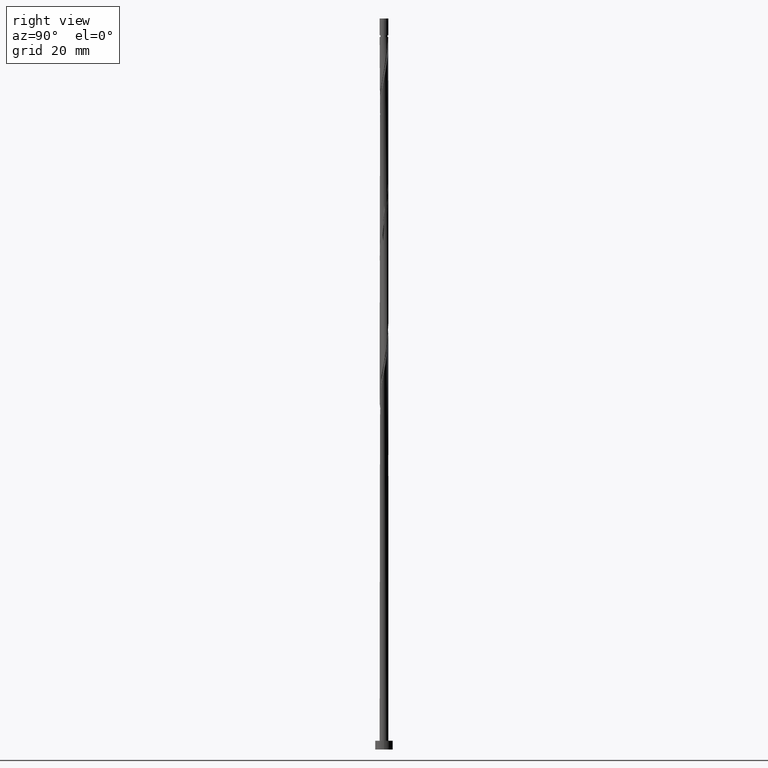
[diagram: clean part render]
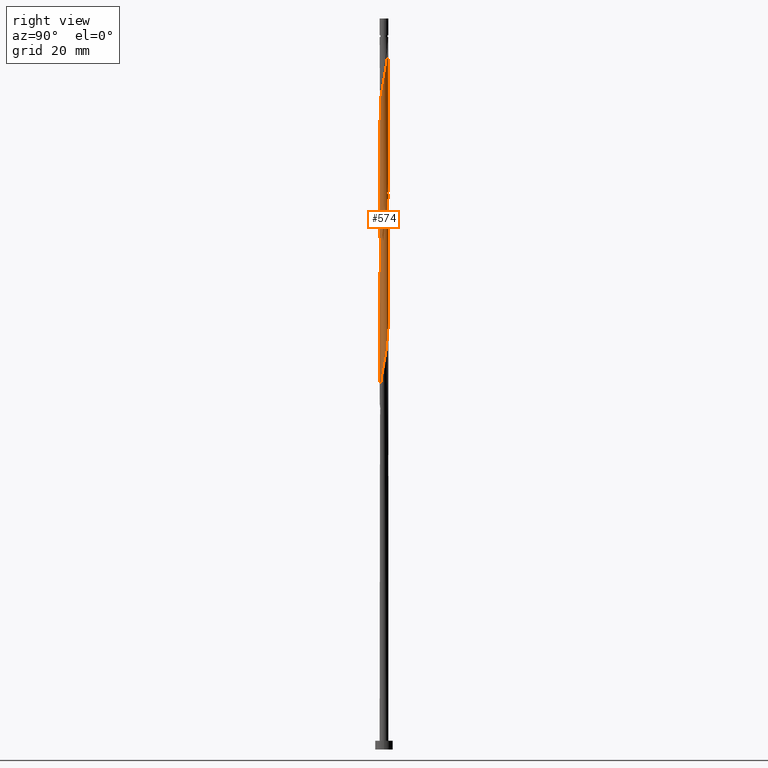
[diagram: same view with one face highlighted and labeled with its STEP entity id]
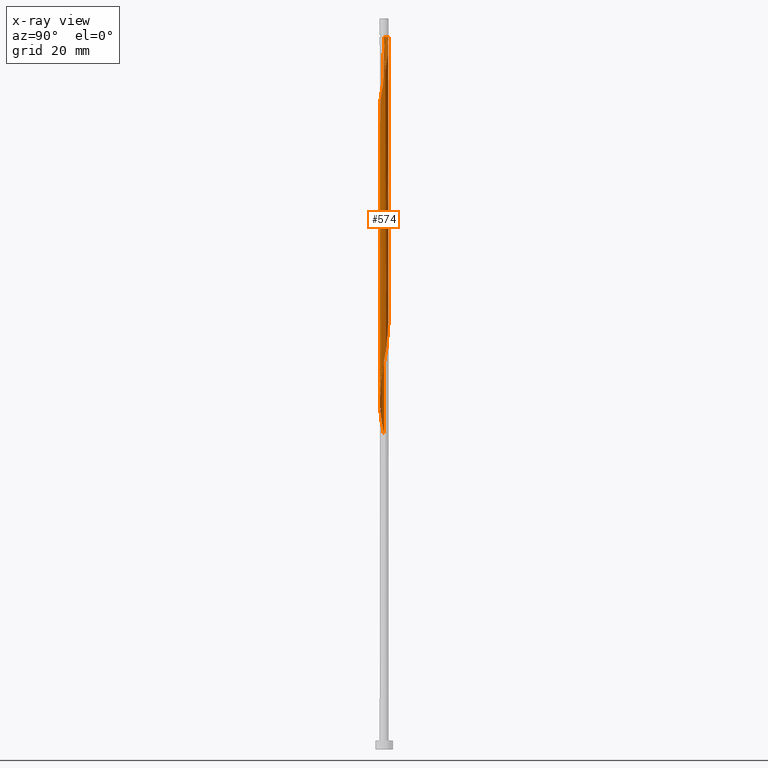
[diagram: x-ray of the same camera — body ghosted, the highlighted face saturated]
A machine part, right view. The second image highlights one B-rep face of the part: STEP entity #574.
The next image is the same camera in x-ray: the body ghosted, the highlighted face saturated — about 0% of this face is hidden behind the body in this view.
In plain terms, the highlighted cylindrical surface (bore or boss wall) has radius 1 mm, axis along (-0, -0, -1).
Its self-contained STEP definition (entity closure, byte-faithful):
#2 = CARTESIAN_POINT ( 'NONE',  ( -0.9800000000000006484, -0.1989974874213297495, 137.2911989669926811 ) ) ;
#4 = VERTEX_POINT ( 'NONE', #232 ) ;
#27 = CARTESIAN_POINT ( 'NONE',  ( -0.8336771183575241162, -0.5522521727681101167, 74.79119896699263847 ) ) ;
#28 = CARTESIAN_POINT ( 'NONE',  ( -0.1928297432528299771, -0.9900247826383189453, 143.5411989669926811 ) ) ;
#33 = CARTESIAN_POINT ( 'NONE',  ( 0.8364044564148302996, 0.5637020182777557897, 156.0411989669926811 ) ) ;
#41 = CARTESIAN_POINT ( 'NONE',  ( 0.4424964979548791644, 0.9063824962005117003, 158.8189767447704810 ) ) ;
#44 = CARTESIAN_POINT ( 'NONE',  ( -0.9981116494354772550, -0.06142585173357393430, 72.01342118921486701 ) ) ;
#74 = CARTESIAN_POINT ( 'NONE',  ( 0.9981116494354772550, 0.06142585173357359429, 88.68008785588155263 ) ) ;
#75 = CARTESIAN_POINT ( 'NONE',  ( -1.000000000000001998, -2.355221049870161332E-16, 136.2276323117825996 ) ) ;
#87 = CARTESIAN_POINT ( 'NONE',  ( -1.000000000000001998, 5.570284705248540888E-16, 138.3547656222027626 ) ) ;
#93 = CARTESIAN_POINT ( 'NONE',  ( -0.8336771183575241162, -0.5522521727681101167, 108.1245323003259955 ) ) ;
#98 = CARTESIAN_POINT ( 'NONE',  ( -0.9800000000000008704, 0.1989974874213298883, 137.2911989669926243 ) ) ;
#100 = CARTESIAN_POINT ( 'NONE',  ( 0.9800000000000008704, -0.1989974874213299993, 120.6245323003260239 ) ) ;
#105 = CARTESIAN_POINT ( 'NONE',  ( 0.9900247826383187233, 0.1928297432528292554, 122.7078656336593241 ) ) ;
#108 = CARTESIAN_POINT ( 'NONE',  ( 0.1928297432528293109, -0.9900247826383187233, 114.3745323003259955 ) ) ;
#114 = CARTESIAN_POINT ( 'NONE',  ( 0.9063824962005122554, 0.4424964979548781097, 124.0967545225481956 ) ) ;
#140 = VECTOR ( 'NONE', #1477, 1000.000000000000000 ) ;
#152 = CARTESIAN_POINT ( 'NONE',  ( -0.5522521727681102277, -0.8336771183575241162, 141.4578656336593099 ) ) ;
#159 = CARTESIAN_POINT ( 'NONE',  ( 0.8336771183575237831, -0.5522521727681104498, 149.7911989669926811 ) ) ;
#183 = CARTESIAN_POINT ( 'NONE',  ( -0.5637020182777562338, -0.8364044564148300775, 76.87453230032596707 ) ) ;
#200 = CARTESIAN_POINT ( 'NONE',  ( 0.9538014837673658430, -0.3280169350569786535, 86.59675452254820982 ) ) ;
#211 = CARTESIAN_POINT ( 'NONE',  ( 0.8336771183575241162, 0.5522521727681098946, 124.7911989669926385 ) ) ;
#213 = CARTESIAN_POINT ( 'NONE',  ( -0.9800000000000008704, 0.1989974874213298883, 103.9578656336593099 ) ) ;
#226 = CARTESIAN_POINT ( 'NONE',  ( -0.1928297432528298938, 0.9900247826383187233, 131.0411989669926527 ) ) ;
#229 = CARTESIAN_POINT ( 'NONE',  ( -0.9063824962005119223, -0.4424964979548786093, 107.4300878558815242 ) ) ;
#232 = CARTESIAN_POINT ( 'NONE',  ( -0.9999999999999922284, 0.000000000000000000, 162.2911989669926527 ) ) ;
#237 = CARTESIAN_POINT ( 'NONE',  ( -0.4424964979548788313, 0.9063824962005119223, 99.09675452254823824 ) ) ;
#245 = CARTESIAN_POINT ( 'NONE',  ( 0.3176631206038540989, -0.9482036394194155449, 115.0689767447704384 ) ) ;
#248 = CARTESIAN_POINT ( 'NONE',  ( -0.06997803978568210848, -1.006198516232635232, 79.65231007810376695 ) ) ;
#254 = CARTESIAN_POINT ( 'NONE',  ( 0.6620078475813417906, 0.7609717405145356439, 157.4300878558815100 ) ) ;
#270 = CARTESIAN_POINT ( 'NONE',  ( -0.8364044564148300775, -0.5637020182777559008, 139.3745323003259671 ) ) ;
#279 = CARTESIAN_POINT ( 'NONE',  ( 0.5637020182777557897, -0.8364044564148302996, 147.7078656336593099 ) ) ;
#312 = CARTESIAN_POINT ( 'NONE',  ( 0.5637020182777566779, 0.8364044564148295224, 93.54119896699263847 ) ) ;
#325 = ORIENTED_EDGE ( 'NONE', *, *, #428, .F. ) ;
#340 = CARTESIAN_POINT ( 'NONE',  ( -1.000000000000001998, 8.897501743954044594E-16, 71.68809895553606282 ) ) ;
#345 = VERTEX_POINT ( 'NONE', #75 ) ;
#348 = DIRECTION ( 'NONE',  ( -0.000000000000000000, -0.000000000000000000, -1.000000000000000000 ) ) ;
#351 = CARTESIAN_POINT ( 'NONE',  ( 0.6620078475813409025, -0.7609717405145366431, 117.1523100781037670 ) ) ;
#358 = EDGE_CURVE ( 'NONE', #345, #553, #1463, .T. ) ;
#359 = CARTESIAN_POINT ( 'NONE',  ( -0.8364044564148300775, 0.5637020182777562338, 101.8745323003259813 ) ) ;
#364 = CARTESIAN_POINT ( 'NONE',  ( -0.6620078475813411245, 0.7609717405145364211, 133.8189767447704241 ) ) ;
#370 = CARTESIAN_POINT ( 'NONE',  ( 0.4424964979548786093, -0.9063824962005119223, 82.43008785588152421 ) ) ;
#374 = VECTOR ( 'NONE', #348, 1000.000000000000000 ) ;
#380 = CARTESIAN_POINT ( 'NONE',  ( 0.000000000000000000, 0.000000000000000000, 166.5200000000000102 ) ) ;
#383 =( BOUNDED_CURVE ( )  B_SPLINE_CURVE ( 2, ( #87, #1503, #98, #596, #717, #1216, #735, #364, #1591, #855, #1111, #226, #727, #975, #467, #457, #846, #1608, #708, #1495, #211, #114, #702, #105, #1338, #993, #1223 ),
 .UNSPECIFIED., .F., .T. ) 
 B_SPLINE_CURVE_WITH_KNOTS ( ( 3, 2, 2, 2, 2, 2, 2, 2, 2, 2, 2, 2, 2, 3 ),
 ( 0.4295317669814460726, 0.4375000000000000000, 0.4479166666666666852, 0.4583333333333333148, 0.4687500000000000000, 0.4791666666666666852, 0.4895833333333333148, 0.5000000000000000000, 0.5104166666666666297, 0.5208333333333333703, 0.5312500000000000000, 0.5416666666666666297, 0.5520833333333333703, 0.5545317669814460171 ),
 .UNSPECIFIED. ) 
 CURVE ( )  GEOMETRIC_REPRESENTATION_ITEM ( )  RATIONAL_B_SPLINE_CURVE ( ( 0.9062941362546349522, 0.9031415850403389234, 0.9090909090909143897, 0.9013135103398328685, 0.9090909090909143897, 0.9013135103398328685, 0.9090909090909143897, 0.9013135103398328685, 0.9090909090909143897, 0.9013135103398328685, 0.9090909090909143897, 0.9013135103398328685, 0.9090909090909143897, 0.9013135103398328685, 0.9090909090909143897, 0.9013135103398328685, 0.9090909090909143897, 0.9013135103398328685, 0.9090909090909143897, 0.9013135103398328685, 0.9090909090909143897, 0.9013135103398328685, 0.9090909090909143897, 0.9013135103398328685, 0.9090909090909143897, 0.9072628343904083348, 0.9062941362546348412 ) ) 
 REPRESENTATION_ITEM ( '' )  );
#390 = VERTEX_POINT ( 'NONE', #1621 ) ;
#396 = CARTESIAN_POINT ( 'NONE',  ( -0.8951029700910979603, -0.4458594766673668608, 138.6800878558815100 ) ) ;
#402 = CARTESIAN_POINT ( 'NONE',  ( 0.7492061519980859341, 0.6623368793961456058, 156.7356434114371098 ) ) ;
#404 = CARTESIAN_POINT ( 'NONE',  ( 0.1989974874213296663, -0.9800000000000006484, 145.6245323003259955 ) ) ;
#407 = EDGE_CURVE ( 'NONE', #567, #390, #1001, .T. ) ;
#409 = CARTESIAN_POINT ( 'NONE',  ( 1.006198516232635010, 0.06997803978568087335, 153.2634211892149096 ) ) ;
#420 = VERTEX_POINT ( 'NONE', #1486 ) ;
#428 = EDGE_CURVE ( 'NONE', #1230, #390, #383, .T. ) ;
#429 = CARTESIAN_POINT ( 'NONE',  ( -1.000000000000001998, 8.897501743954044594E-16, 71.68809895553606282 ) ) ;
#445 = CARTESIAN_POINT ( 'NONE',  ( 0.7609717405145367541, 0.6620078475813407914, 92.15231007810376695 ) ) ;
#449 = DIRECTION ( 'NONE',  ( -0.000000000000000000, -0.000000000000000000, -1.000000000000000000 ) ) ;
#457 = CARTESIAN_POINT ( 'NONE',  ( 0.3280169350569787645, 0.9538014837673658430, 128.2634211892148528 ) ) ;
#460 = CARTESIAN_POINT ( 'NONE',  ( -0.4458594766673673049, -0.8951029700910980713, 110.9023100781037954 ) ) ;
#463 = CARTESIAN_POINT ( 'NONE',  ( 0.06997803978568181704, 1.006198516232635010, 96.31897674477040994 ) ) ;
#467 = CARTESIAN_POINT ( 'NONE',  ( 0.1989974874213300549, 0.9800000000000008704, 128.9578656336593383 ) ) ;
#474 = CARTESIAN_POINT ( 'NONE',  ( 1.000000000000000000, 1.224646799147353207E-16, 166.5200000000000102 ) ) ;
#479 = CARTESIAN_POINT ( 'NONE',  ( -0.1989974874213299438, -0.9800000000000008704, 78.95786563365930988 ) ) ;
#480 =( BOUNDED_CURVE ( )  B_SPLINE_CURVE ( 2, ( #1114, #1610, #100, #580, #1005, #1376, #968, #351, #1234, #1094, #245, #108, #978, #1350, #599, #747, #460, #488, #986, #722, #93, #229, #1469, #1499, #590, #1242, #213, #865, #608, #359, #1617, #995, #1366, #237, #738, #1250, #940, #463, #1472, #1447, #841, #312, #1343, #445, #1228, #951, #1455, #712, #74, #691, #1328, #200, #1088, #1586, #742, #1009, #860, #370, #875, #1380, #732, #248, #479, #1064, #648, #183, #1160, #1180, #27, #561, #1563, #1039, #44, #542, #429 ),
 .UNSPECIFIED., .F., .T. ) 
 B_SPLINE_CURVE_WITH_KNOTS ( ( 3, 2, 2, 2, 2, 2, 2, 2, 2, 2, 2, 2, 2, 2, 2, 2, 2, 2, 2, 2, 2, 2, 2, 2, 2, 2, 2, 2, 2, 2, 2, 2, 2, 2, 2, 2, 2, 3 ),
 ( 0.5545317669814460171, 0.5625000000000000000, 0.5729166666666666297, 0.5833333333333333703, 0.5937500000000000000, 0.6041666666666666297, 0.6145833333333333703, 0.6250000000000000000, 0.6354166666666666297, 0.6458333333333333703, 0.6562500000000000000, 0.6666666666666666297, 0.6770833333333333703, 0.6875000000000000000, 0.6979166666666666297, 0.7083333333333333703, 0.7187500000000000000, 0.7291666666666666297, 0.7395833333333333703, 0.7500000000000000000, 0.7604166666666666297, 0.7708333333333333703, 0.7812500000000000000, 0.7916666666666666297, 0.8020833333333333703, 0.8125000000000000000, 0.8229166666666666297, 0.8333333333333333703, 0.8437500000000000000, 0.8541666666666666297, 0.8645833333333333703, 0.8750000000000000000, 0.8854166666666666297, 0.8958333333333333703, 0.9062500000000000000, 0.9166666666666665186, 0.9270833333333332593, 0.9295317669814462391 ),
 .UNSPECIFIED. ) 
 CURVE ( )  GEOMETRIC_REPRESENTATION_ITEM ( )  RATIONAL_B_SPLINE_CURVE ( ( 0.9062941362546348412, 0.9031415850403388124, 0.9090909090909143897, 0.9013135103398328685, 0.9090909090909143897, 0.9013135103398328685, 0.9090909090909143897, 0.9013135103398328685, 0.9090909090909143897, 0.9013135103398328685, 0.9090909090909143897, 0.9013135103398328685, 0.9090909090909143897, 0.9013135103398328685, 0.9090909090909143897, 0.9013135103398328685, 0.9090909090909143897, 0.9013135103398328685, 0.9090909090909143897, 0.9013135103398328685, 0.9090909090909143897, 0.9013135103398328685, 0.9090909090909143897, 0.9013135103398328685, 0.9090909090909143897, 0.9013135103398328685, 0.9090909090909143897, 0.9013135103398328685, 0.9090909090909143897, 0.9013135103398328685, 0.9090909090909143897, 0.9013135103398328685, 0.9090909090909143897, 0.9013135103398328685, 0.9090909090909143897, 0.9013135103398328685, 0.9090909090909143897, 0.9013135103398328685, 0.9090909090909143897, 0.9013135103398328685, 0.9090909090909143897, 0.9013135103398328685, 0.9090909090909143897, 0.9013135103398328685, 0.9090909090909143897, 0.9013135103398328685, 0.9090909090909143897, 0.9013135103398328685, 0.9090909090909143897, 0.9013135103398328685, 0.9090909090909143897, 0.9013135103398328685, 0.9090909090909143897, 0.9013135103398328685, 0.9090909090909143897, 0.9013135103398328685, 0.9090909090909143897, 0.9013135103398328685, 0.9090909090909143897, 0.9013135103398328685, 0.9090909090909143897, 0.9013135103398328685, 0.9090909090909143897, 0.9013135103398328685, 0.9090909090909143897, 0.9013135103398328685, 0.9090909090909143897, 0.9013135103398328685, 0.9090909090909143897, 0.9013135103398328685, 0.9090909090909143897, 0.9013135103398328685, 0.9090909090909143897, 0.9072628343904082238, 0.9062941362546348412 ) ) 
 REPRESENTATION_ITEM ( '' )  );
#488 = CARTESIAN_POINT ( 'NONE',  ( -0.5637020182777562338, -0.8364044564148300775, 110.2078656336592957 ) ) ;
#509 = CARTESIAN_POINT ( 'NONE',  ( 0.06142585173357487799, 0.9981116494354770330, 160.9023100781037385 ) ) ;
#515 = CARTESIAN_POINT ( 'NONE',  ( 0.9800000000000006484, 0.1989974874213296385, 153.9578656336593383 ) ) ;
#524 = CARTESIAN_POINT ( 'NONE',  ( -0.06997803978568784000, 1.006198516232635454, 161.5967545225482240 ) ) ;
#532 = CARTESIAN_POINT ( 'NONE',  ( 0.1928297432528305044, 0.9900247826383187233, 160.2078656336593383 ) ) ;
#542 = CARTESIAN_POINT ( 'NONE',  ( -1.000000000000002220, -0.03074195165766878748, 71.85126264356419767 ) ) ;
#545 = ORIENTED_EDGE ( 'NONE', *, *, #1003, .T. ) ;
#553 = VERTEX_POINT ( 'NONE', #340 ) ;
#561 = CARTESIAN_POINT ( 'NONE',  ( -0.9063824962005119223, -0.4424964979548786093, 74.09675452254822403 ) ) ;
#567 = VERTEX_POINT ( 'NONE', #869 ) ;
#574 = ADVANCED_FACE ( 'NONE', ( #1372 ), #910, .T. ) ;
#580 = CARTESIAN_POINT ( 'NONE',  ( 0.9538014837673658430, -0.3280169350569786535, 119.9300878558815242 ) ) ;
#583 = AXIS2_PLACEMENT_3D ( 'NONE', #380, #1524, #745 ) ;
#590 = CARTESIAN_POINT ( 'NONE',  ( -0.9981116494354772550, -0.06142585173357393430, 105.3467545225482098 ) ) ;
#596 = CARTESIAN_POINT ( 'NONE',  ( -0.9538014837673660651, 0.3280169350569779319, 136.5967545225482240 ) ) ;
#599 = CARTESIAN_POINT ( 'NONE',  ( -0.1989974874213299438, -0.9800000000000008704, 112.2911989669926811 ) ) ;
#608 = CARTESIAN_POINT ( 'NONE',  ( -0.8951029700910980713, 0.4458594766673671939, 102.5689767447704241 ) ) ;
#648 = CARTESIAN_POINT ( 'NONE',  ( -0.4458594766673673049, -0.8951029700910980713, 77.56897674477042415 ) ) ;
#657 = CARTESIAN_POINT ( 'NONE',  ( 0.9063824962005117003, -0.4424964979548791644, 150.4856434114371098 ) ) ;
#660 = ORIENTED_EDGE ( 'NONE', *, *, #407, .F. ) ;
#689 = AXIS2_PLACEMENT_3D ( 'NONE', #1093, #1594, #1468 ) ;
#691 = CARTESIAN_POINT ( 'NONE',  ( 1.006198516232635232, -0.06997803978568216399, 87.98564341143709555 ) ) ;
#693 = ORIENTED_EDGE ( 'NONE', *, *, #698, .F. ) ;
#698 = EDGE_CURVE ( 'NONE', #390, #553, #480, .T. ) ;
#702 = CARTESIAN_POINT ( 'NONE',  ( 0.9482036394194156559, 0.3176631206038536548, 123.4023100781037954 ) ) ;
#708 = CARTESIAN_POINT ( 'NONE',  ( 0.6623368793961467160, 0.7492061519980851569, 126.1800878558815242 ) ) ;
#712 = CARTESIAN_POINT ( 'NONE',  ( 0.9900247826383187233, 0.1928297432528292554, 89.37453230032596707 ) ) ;
#716 =( BOUNDED_CURVE ( )  B_SPLINE_CURVE ( 2, ( #751, #1031, #2, #1530, #396, #270, #1517, #878, #152, #1413, #1161, #28, #1040, #1541, #404, #909, #1254, #279, #1288, #782, #159, #657, #1168, #1546, #907, #409, #515, #1409, #1284, #33, #402, #254, #1401, #41, #897, #532, #509, #524, #1522 ),
 .UNSPECIFIED., .F., .T. ) 
 B_SPLINE_CURVE_WITH_KNOTS ( ( 3, 2, 2, 2, 2, 2, 2, 2, 2, 2, 2, 2, 2, 2, 2, 2, 2, 2, 2, 3 ),
 ( 0.5545317669814462391, 0.5625000000000000000, 0.5729166666666667407, 0.5833333333333333703, 0.5937500000000001110, 0.6041666666666668517, 0.6145833333333334814, 0.6250000000000002220, 0.6354166666666669627, 0.6458333333333334814, 0.6562500000000002220, 0.6666666666666670737, 0.6770833333333335924, 0.6875000000000003331, 0.6979166666666671848, 0.7083333333333337034, 0.7187500000000004441, 0.7291666666666671848, 0.7395833333333338144, 0.7500000000000005551 ),
 .UNSPECIFIED. ) 
 CURVE ( )  GEOMETRIC_REPRESENTATION_ITEM ( )  RATIONAL_B_SPLINE_CURVE ( ( 0.9062941362546450552, 0.9031415850403494705, 0.9090909090909247148, 0.9013135103398431935, 0.9090909090909247148, 0.9013135103398431935, 0.9090909090909247148, 0.9013135103398431935, 0.9090909090909247148, 0.9013135103398431935, 0.9090909090909247148, 0.9013135103398431935, 0.9090909090909247148, 0.9013135103398431935, 0.9090909090909247148, 0.9013135103398431935, 0.9090909090909247148, 0.9013135103398431935, 0.9090909090909247148, 0.9013135103398431935, 0.9090909090909247148, 0.9013135103398431935, 0.9090909090909247148, 0.9013135103398431935, 0.9090909090909247148, 0.9013135103398431935, 0.9090909090909247148, 0.9013135103398431935, 0.9090909090909247148, 0.9013135103398431935, 0.9090909090909247148, 0.9013135103398431935, 0.9090909090909247148, 0.9013135103398431935, 0.9090909090909247148, 0.9013135103398431935, 0.9090909090909247148, 0.9013135103398428605, 0.9090909090909250478 ) ) 
 REPRESENTATION_ITEM ( '' )  );
#717 = CARTESIAN_POINT ( 'NONE',  ( -0.8951029700910980713, 0.4458594766673671939, 135.9023100781038238 ) ) ;
#722 = CARTESIAN_POINT ( 'NONE',  ( -0.7609717405145366431, -0.6620078475813409025, 108.8189767447704099 ) ) ;
#727 = CARTESIAN_POINT ( 'NONE',  ( -0.06142585173357402450, 0.9981116494354772550, 130.3467545225481956 ) ) ;
#732 = CARTESIAN_POINT ( 'NONE',  ( 0.06142585173357364980, -0.9981116494354772550, 80.34675452254819561 ) ) ;
#735 = CARTESIAN_POINT ( 'NONE',  ( -0.7492061519980853790, 0.6623368793961462719, 134.5134211892149096 ) ) ;
#738 = CARTESIAN_POINT ( 'NONE',  ( -0.3176631206038542654, 0.9482036394194155449, 98.40231007810376695 ) ) ;
#742 = CARTESIAN_POINT ( 'NONE',  ( 0.7492061519980853790, -0.6623368793961467160, 84.51342118921488122 ) ) ;
#745 = DIRECTION ( 'NONE',  ( -1.000000000000000000, 0.000000000000000000, 0.000000000000000000 ) ) ;
#747 = CARTESIAN_POINT ( 'NONE',  ( -0.3280169350569781539, -0.9538014837673660651, 111.5967545225481814 ) ) ;
#751 = CARTESIAN_POINT ( 'NONE',  ( -1.000000000000001998, -2.355221049870161332E-16, 136.2276323117825996 ) ) ;
#782 = CARTESIAN_POINT ( 'NONE',  ( 0.7609717405145359770, -0.6620078475813414576, 149.0967545225481956 ) ) ;
#822 = VECTOR ( 'NONE', #449, 1000.000000000000000 ) ;
#841 = CARTESIAN_POINT ( 'NONE',  ( 0.4458594766673677490, 0.8951029700910978493, 94.23564341143709555 ) ) ;
#846 = CARTESIAN_POINT ( 'NONE',  ( 0.4458594766673677490, 0.8951029700910978493, 127.5689767447704099 ) ) ;
#853 = ORIENTED_EDGE ( 'NONE', *, *, #891, .F. ) ;
#855 = CARTESIAN_POINT ( 'NONE',  ( -0.4424964979548788313, 0.9063824962005119223, 132.4300878558815384 ) ) ;
#860 = CARTESIAN_POINT ( 'NONE',  ( 0.5522521727681095616, -0.8336771183575244493, 83.12453230032599549 ) ) ;
#865 = CARTESIAN_POINT ( 'NONE',  ( -0.9538014837673660651, 0.3280169350569779319, 103.2634211892148670 ) ) ;
#869 = CARTESIAN_POINT ( 'NONE',  ( 1.000000000000000000, 1.224646799147353207E-16, 162.2911989669927948 ) ) ;
#875 = CARTESIAN_POINT ( 'NONE',  ( 0.3176631206038540989, -0.9482036394194155449, 81.73564341143712397 ) ) ;
#878 = CARTESIAN_POINT ( 'NONE',  ( -0.6620078475813414576, -0.7609717405145359770, 140.7634211892148528 ) ) ;
#891 = EDGE_CURVE ( 'NONE', #4, #1230, #1583, .T. ) ;
#897 = CARTESIAN_POINT ( 'NONE',  ( 0.3176631206038548205, 0.9482036394194151008, 159.5134211892149381 ) ) ;
#907 = CARTESIAN_POINT ( 'NONE',  ( 0.9981116494354770330, -0.06142585173357480860, 152.5689767447703957 ) ) ;
#909 = CARTESIAN_POINT ( 'NONE',  ( 0.3280169350569777098, -0.9538014837673663981, 146.3189767447704526 ) ) ;
#910 = CYLINDRICAL_SURFACE ( 'NONE', #583, 1.000000000000000000 ) ;
#940 = CARTESIAN_POINT ( 'NONE',  ( -0.06142585173357402450, 0.9981116494354772550, 97.01342118921488122 ) ) ;
#951 = CARTESIAN_POINT ( 'NONE',  ( 0.9063824962005122554, 0.4424964979548781097, 90.76342118921486701 ) ) ;
#953 = EDGE_LOOP ( 'NONE', ( #853, #545, #1354, #1457, #693, #660, #1300, #325 ) ) ;
#968 = CARTESIAN_POINT ( 'NONE',  ( 0.7492061519980853790, -0.6623368793961467160, 117.8467545225481956 ) ) ;
#975 = CARTESIAN_POINT ( 'NONE',  ( 0.06997803978568181704, 1.006198516232635010, 129.6523100781037954 ) ) ;
#978 = CARTESIAN_POINT ( 'NONE',  ( 0.06142585173357364980, -0.9981116494354772550, 113.6800878558815526 ) ) ;
#986 = CARTESIAN_POINT ( 'NONE',  ( -0.6623368793961466050, -0.7492061519980853790, 109.5134211892148670 ) ) ;
#993 = CARTESIAN_POINT ( 'NONE',  ( 1.000000000000001998, 0.03074195165767129589, 121.8512626435642261 ) ) ;
#995 = CARTESIAN_POINT ( 'NONE',  ( -0.6620078475813411245, 0.7609717405145364211, 100.4856434114370956 ) ) ;
#1001 = LINE ( 'NONE', #474, #374 ) ;
#1003 = EDGE_CURVE ( 'NONE', #4, #420, #1590, .T. ) ;
#1005 = CARTESIAN_POINT ( 'NONE',  ( 0.8951029700910978493, -0.4458594766673676935, 119.2356434114370813 ) ) ;
#1009 = CARTESIAN_POINT ( 'NONE',  ( 0.6620078475813409025, -0.7609717405145366431, 83.81897674477043836 ) ) ;
#1031 = CARTESIAN_POINT ( 'NONE',  ( -1.000000000000001110, -0.1005037815259268857, 136.7610586809718711 ) ) ;
#1039 = CARTESIAN_POINT ( 'NONE',  ( -0.9900247826383187233, -0.1928297432528296163, 72.70786563365929567 ) ) ;
#1040 = CARTESIAN_POINT ( 'NONE',  ( -0.06142585173357428124, -0.9981116494354770330, 144.2356434114370813 ) ) ;
#1064 = CARTESIAN_POINT ( 'NONE',  ( -0.3280169350569781539, -0.9538014837673660651, 78.26342118921486701 ) ) ;
#1088 = CARTESIAN_POINT ( 'NONE',  ( 0.8951029700910978493, -0.4458594766673676935, 85.90231007810375274 ) ) ;
#1093 = CARTESIAN_POINT ( 'NONE',  ( 0.000000000000000000, 0.000000000000000000, 162.2911989669926527 ) ) ;
#1094 = CARTESIAN_POINT ( 'NONE',  ( 0.4424964979548786093, -0.9063824962005119223, 115.7634211892148954 ) ) ;
#1111 = CARTESIAN_POINT ( 'NONE',  ( -0.3176631206038542654, 0.9482036394194155449, 131.7356434114370813 ) ) ;
#1114 = CARTESIAN_POINT ( 'NONE',  ( 1.000000000000001998, -1.125272279382423502E-15, 121.6880989555360912 ) ) ;
#1160 = CARTESIAN_POINT ( 'NONE',  ( -0.6623368793961466050, -0.7492061519980853790, 76.18008785588156684 ) ) ;
#1161 = CARTESIAN_POINT ( 'NONE',  ( -0.3176631206038546540, -0.9482036394194153228, 142.8467545225482525 ) ) ;
#1168 = CARTESIAN_POINT ( 'NONE',  ( 0.9482036394194153228, -0.3176631206038548205, 151.1800878558815668 ) ) ;
#1180 = CARTESIAN_POINT ( 'NONE',  ( -0.7609717405145366431, -0.6620078475813409025, 75.48564341143710976 ) ) ;
#1216 = CARTESIAN_POINT ( 'NONE',  ( -0.8364044564148300775, 0.5637020182777562338, 135.2078656336593099 ) ) ;
#1223 = CARTESIAN_POINT ( 'NONE',  ( 1.000000000000001998, -1.125272279382423502E-15, 121.6880989555360912 ) ) ;
#1228 = CARTESIAN_POINT ( 'NONE',  ( 0.8336771183575241162, 0.5522521727681098946, 91.45786563365933830 ) ) ;
#1230 = VERTEX_POINT ( 'NONE', #1259 ) ;
#1234 = CARTESIAN_POINT ( 'NONE',  ( 0.5522521727681095616, -0.8336771183575244493, 116.4578656336593383 ) ) ;
#1239 = CARTESIAN_POINT ( 'NONE',  ( -1.000000000000000000, 0.000000000000000000, 166.5200000000000102 ) ) ;
#1242 = CARTESIAN_POINT ( 'NONE',  ( -1.006198516232635232, 0.06997803978568206684, 104.6523100781037670 ) ) ;
#1250 = CARTESIAN_POINT ( 'NONE',  ( -0.1928297432528298938, 0.9900247826383187233, 97.70786563365928146 ) ) ;
#1254 = CARTESIAN_POINT ( 'NONE',  ( 0.4458594766673666387, -0.8951029700910980713, 147.0134211892148812 ) ) ;
#1259 = CARTESIAN_POINT ( 'NONE',  ( -1.000000000000001998, 5.570284705248540888E-16, 138.3547656222027626 ) ) ;
#1284 = CARTESIAN_POINT ( 'NONE',  ( 0.8951029700910980713, 0.4458594766673666387, 155.3467545225482240 ) ) ;
#1288 = CARTESIAN_POINT ( 'NONE',  ( 0.6623368793961458278, -0.7492061519980858231, 148.4023100781037954 ) ) ;
#1300 = ORIENTED_EDGE ( 'NONE', *, *, #407, .T. ) ;
#1328 = CARTESIAN_POINT ( 'NONE',  ( 0.9800000000000008704, -0.1989974874213299993, 87.29119896699265269 ) ) ;
#1338 = CARTESIAN_POINT ( 'NONE',  ( 0.9981116494354772550, 0.06142585173357359429, 122.0134211892148954 ) ) ;
#1343 = CARTESIAN_POINT ( 'NONE',  ( 0.6623368793961467160, 0.7492061519980851569, 92.84675452254819561 ) ) ;
#1350 = CARTESIAN_POINT ( 'NONE',  ( -0.06997803978568210848, -1.006198516232635232, 112.9856434114371098 ) ) ;
#1354 = ORIENTED_EDGE ( 'NONE', *, *, #1358, .F. ) ;
#1358 = EDGE_CURVE ( 'NONE', #345, #420, #716, .T. ) ;
#1366 = CARTESIAN_POINT ( 'NONE',  ( -0.5522521727681101167, 0.8336771183575241162, 99.79119896699266690 ) ) ;
#1372 = FACE_OUTER_BOUND ( 'NONE', #953, .T. ) ;
#1376 = CARTESIAN_POINT ( 'NONE',  ( 0.8364044564148295224, -0.5637020182777565669, 118.5411989669926527 ) ) ;
#1380 = CARTESIAN_POINT ( 'NONE',  ( 0.1928297432528293109, -0.9900247826383187233, 81.04119896699263847 ) ) ;
#1401 = CARTESIAN_POINT ( 'NONE',  ( 0.5522521727681103387, 0.8336771183575241162, 158.1245323003259671 ) ) ;
#1409 = CARTESIAN_POINT ( 'NONE',  ( 0.9538014837673663981, 0.3280169350569775988, 154.6523100781037385 ) ) ;
#1413 = CARTESIAN_POINT ( 'NONE',  ( -0.4424964979548791644, -0.9063824962005117003, 142.1523100781037670 ) ) ;
#1447 = CARTESIAN_POINT ( 'NONE',  ( 0.3280169350569787645, 0.9538014837673658430, 94.93008785588153842 ) ) ;
#1455 = CARTESIAN_POINT ( 'NONE',  ( 0.9482036394194156559, 0.3176631206038536548, 90.06897674477045257 ) ) ;
#1457 = ORIENTED_EDGE ( 'NONE', *, *, #358, .T. ) ;
#1463 = LINE ( 'NONE', #1239, #140 ) ;
#1468 = DIRECTION ( 'NONE',  ( -1.000000000000000000, 0.000000000000000000, 0.000000000000000000 ) ) ;
#1469 = CARTESIAN_POINT ( 'NONE',  ( -0.9482036394194155449, -0.3176631206038542099, 106.7356434114371098 ) ) ;
#1472 = CARTESIAN_POINT ( 'NONE',  ( 0.1989974874213300549, 0.9800000000000008704, 95.62453230032596707 ) ) ;
#1477 = DIRECTION ( 'NONE',  ( -0.000000000000000000, -0.000000000000000000, -1.000000000000000000 ) ) ;
#1486 = CARTESIAN_POINT ( 'NONE',  ( -0.1989974874213682465, 0.9800000000002673239, 162.2911989669927948 ) ) ;
#1488 = CARTESIAN_POINT ( 'NONE',  ( -1.000000000000000000, 0.000000000000000000, 166.5200000000000102 ) ) ;
#1495 = CARTESIAN_POINT ( 'NONE',  ( 0.7609717405145367541, 0.6620078475813407914, 125.4856434114370813 ) ) ;
#1499 = CARTESIAN_POINT ( 'NONE',  ( -0.9900247826383187233, -0.1928297432528296163, 106.0411989669926669 ) ) ;
#1503 = CARTESIAN_POINT ( 'NONE',  ( -1.000000000000001998, 0.1005037815259246375, 137.8213392530134911 ) ) ;
#1517 = CARTESIAN_POINT ( 'NONE',  ( -0.7492061519980854900, -0.6623368793961461609, 140.0689767447704241 ) ) ;
#1522 = CARTESIAN_POINT ( 'NONE',  ( -0.1989974874213682465, 0.9800000000002673239, 162.2911989669927664 ) ) ;
#1524 = DIRECTION ( 'NONE',  ( -0.000000000000000000, -0.000000000000000000, -1.000000000000000000 ) ) ;
#1530 = CARTESIAN_POINT ( 'NONE',  ( -0.9538014837673663981, -0.3280169350569777098, 137.9856434114371098 ) ) ;
#1541 = CARTESIAN_POINT ( 'NONE',  ( 0.06997803978568141459, -1.006198516232635232, 144.9300878558815384 ) ) ;
#1546 = CARTESIAN_POINT ( 'NONE',  ( 0.9900247826383187233, -0.1928297432528304767, 151.8745323003260239 ) ) ;
#1563 = CARTESIAN_POINT ( 'NONE',  ( -0.9482036394194155449, -0.3176631206038542099, 73.40231007810376695 ) ) ;
#1583 = LINE ( 'NONE', #1488, #822 ) ;
#1586 = CARTESIAN_POINT ( 'NONE',  ( 0.8364044564148295224, -0.5637020182777565669, 85.20786563365932409 ) ) ;
#1590 = CIRCLE ( 'NONE', #689, 0.9999999999999922284 ) ;
#1591 = CARTESIAN_POINT ( 'NONE',  ( -0.5522521727681101167, 0.8336771183575241162, 133.1245323003259671 ) ) ;
#1594 = DIRECTION ( 'NONE',  ( -0.000000000000000000, -0.000000000000000000, -1.000000000000000000 ) ) ;
#1608 = CARTESIAN_POINT ( 'NONE',  ( 0.5637020182777566779, 0.8364044564148295224, 126.8745323003259671 ) ) ;
#1610 = CARTESIAN_POINT ( 'NONE',  ( 1.000000000000002220, -0.1005037815259235134, 121.1546725863467771 ) ) ;
#1617 = CARTESIAN_POINT ( 'NONE',  ( -0.7492061519980853790, 0.6623368793961462719, 101.1800878558815384 ) ) ;
#1621 = CARTESIAN_POINT ( 'NONE',  ( 1.000000000000001998, -1.125272279382423502E-15, 121.6880989555360912 ) ) ;